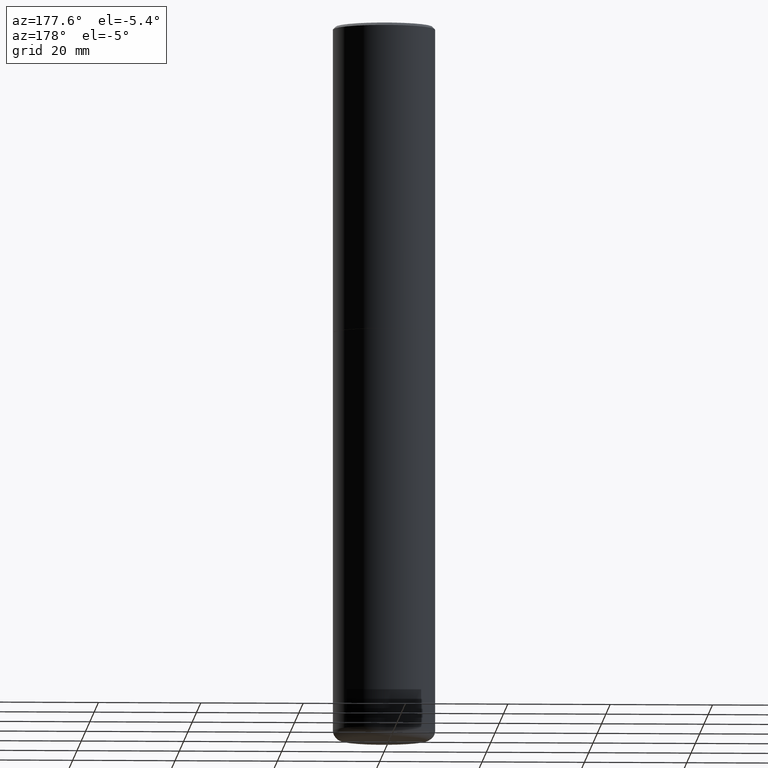
[diagram: clean part render]
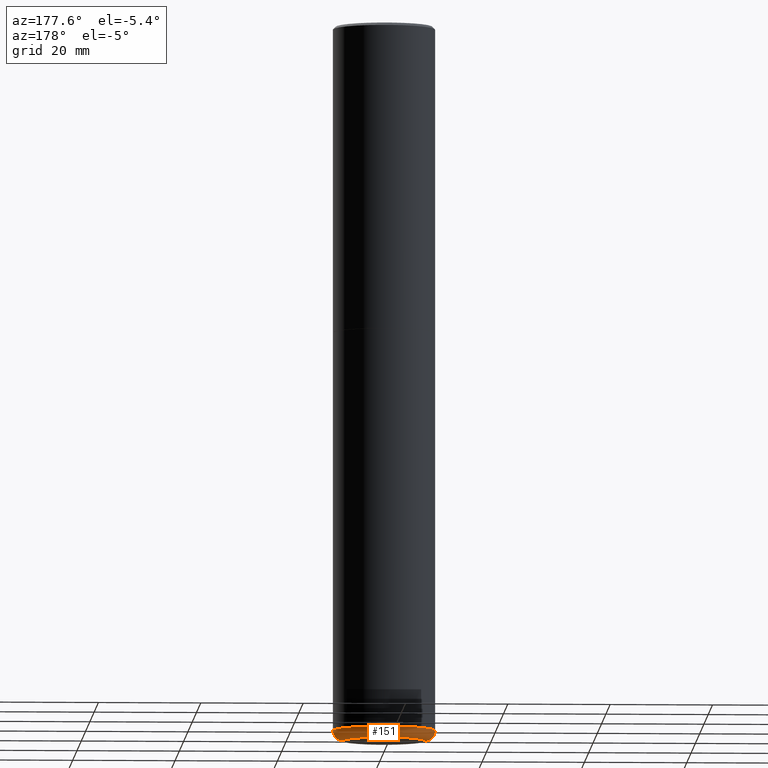
[diagram: same view with one face highlighted and labeled with its STEP entity id]
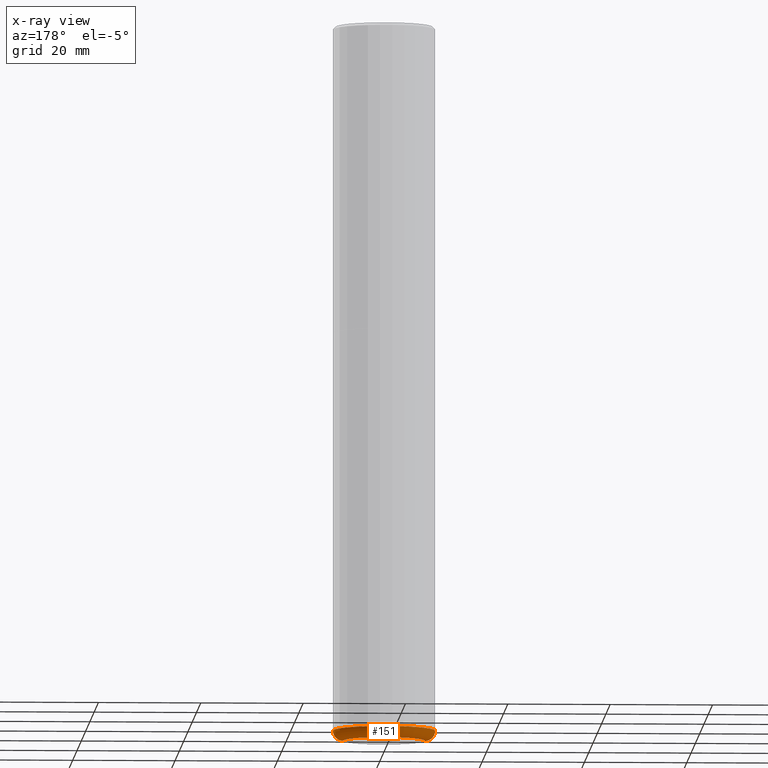
[diagram: x-ray of the same camera — body ghosted, the highlighted face saturated]
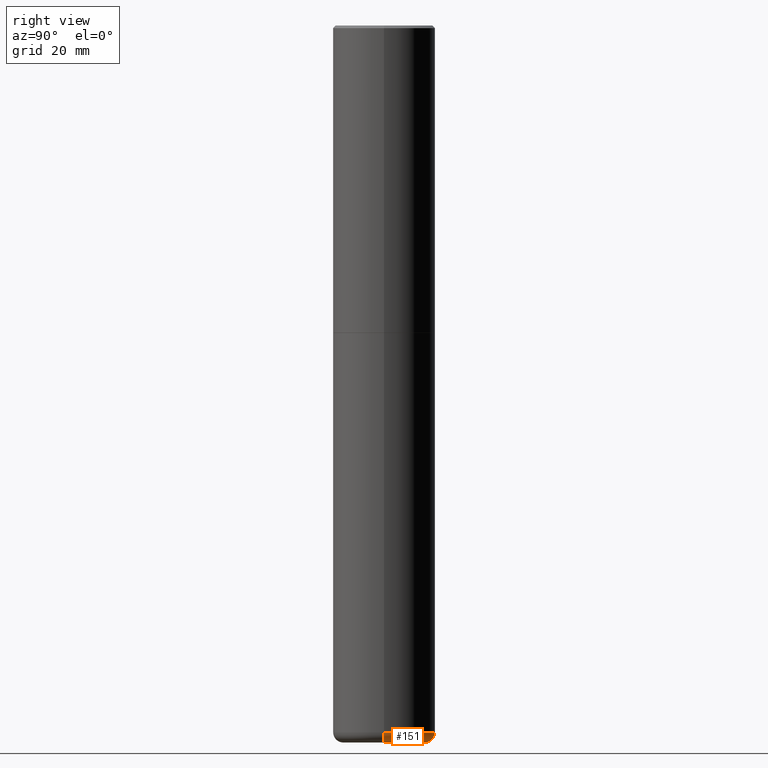
[diagram: same view with one face highlighted and labeled with its STEP entity id]
A machine part, auxiliary view. The second image highlights one B-rep face of the part: STEP entity #151.
The next image is the same camera in x-ray: the body ghosted, the highlighted face saturated — about 0% of this face is hidden behind the body in this view.
A second angle (right view) of the same face is appended — the face is thin or edge-on in the first view.
In plain terms, the highlighted toroidal blend (fillet) surface has major radius 8.001 mm and minor (blend) radius 1.999 mm.
Its self-contained STEP definition (entity closure, byte-faithful):
#45 = AXIS2_PLACEMENT_3D ( 'NONE', #339, #146, #277 ) ;
#51 = CARTESIAN_POINT ( 'NONE',  ( -0.3937000000000002164, -1.617216051138117513E-14, -5.433099999999999596 ) ) ;
#52 = EDGE_CURVE ( 'NONE', #234, #104, #306, .T. ) ;
#71 = AXIS2_PLACEMENT_3D ( 'NONE', #107, #337, #178 ) ;
#73 = ORIENTED_EDGE ( 'NONE', *, *, #184, .T. ) ;
#76 = ORIENTED_EDGE ( 'NONE', *, *, #52, .F. ) ;
#84 = DIRECTION ( 'NONE',  ( -2.445468806185136597E-29, 3.491481338843145583E-15, 1.000000000000000000 ) ) ;
#89 = DIRECTION ( 'NONE',  ( -1.000000000000000000, 7.105427357600995548E-15, 0.000000000000000000 ) ) ;
#104 = VERTEX_POINT ( 'NONE', #144 ) ;
#107 = CARTESIAN_POINT ( 'NONE',  ( 0.3150000000000000577, -2.116920050553986882E-14, -5.433099999999999596 ) ) ;
#110 = DIRECTION ( 'NONE',  ( 1.000000000000000000, -6.982962677686266711E-15, 0.000000000000000000 ) ) ;
#116 = CARTESIAN_POINT ( 'NONE',  ( -0.3150000000000000577, -1.673135764442437708E-14, -5.433099999999999596 ) ) ;
#119 = DIRECTION ( 'NONE',  ( -2.445468806185136597E-29, 3.491481338843145583E-15, 1.000000000000000000 ) ) ;
#136 = CIRCLE ( 'NONE', #179, 0.07870000000000024198 ) ;
#144 = CARTESIAN_POINT ( 'NONE',  ( 0.3937000000000002164, -2.171875966827377866E-14, -5.433099999999999596 ) ) ;
#146 = DIRECTION ( 'NONE',  ( -2.445468806185136597E-29, 3.491481338843145583E-15, 1.000000000000000000 ) ) ;
#151 = ADVANCED_FACE ( 'NONE', ( #274 ), #164, .T. ) ;
#156 = ORIENTED_EDGE ( 'NONE', *, *, #170, .T. ) ;
#162 = VERTEX_POINT ( 'NONE', #340 ) ;
#164 = TOROIDAL_SURFACE ( 'NONE', #45, 0.3150000000000000577, 0.07870000000000024198 ) ;
#170 = EDGE_CURVE ( 'NONE', #234, #162, #404, .T. ) ;
#178 = DIRECTION ( 'NONE',  ( 1.000000000000000000, -6.982962677686273810E-15, 0.000000000000000000 ) ) ;
#179 = AXIS2_PLACEMENT_3D ( 'NONE', #116, #382, #89 ) ;
#184 = EDGE_CURVE ( 'NONE', #162, #325, #136, .T. ) ;
#211 = CIRCLE ( 'NONE', #276, 0.3937000000000001054 ) ;
#234 = VERTEX_POINT ( 'NONE', #280 ) ;
#243 = EDGE_LOOP ( 'NONE', ( #156, #73, #271, #76 ) ) ;
#249 = DIRECTION ( 'NONE',  ( 1.000000000000000000, -6.982962677686273810E-15, 0.000000000000000000 ) ) ;
#271 = ORIENTED_EDGE ( 'NONE', *, *, #348, .F. ) ;
#274 = FACE_OUTER_BOUND ( 'NONE', #243, .T. ) ;
#276 = AXIS2_PLACEMENT_3D ( 'NONE', #413, #119, #110 ) ;
#277 = DIRECTION ( 'NONE',  ( 1.000000000000000000, -6.982962677686263555E-15, 4.883557194083111219E-29 ) ) ;
#279 = CARTESIAN_POINT ( 'NONE',  ( 1.347893496593123646E-28, -1.924434684343564878E-14, -5.511800000000000033 ) ) ;
#280 = CARTESIAN_POINT ( 'NONE',  ( 0.3150000000000000577, -2.144398008690682532E-14, -5.511800000000000033 ) ) ;
#306 = CIRCLE ( 'NONE', #71, 0.07870000000000024198 ) ;
#325 = VERTEX_POINT ( 'NONE', #51 ) ;
#337 = DIRECTION ( 'NONE',  ( -6.982962677686266711E-15, -1.000000000000000000, 3.491481338843145583E-15 ) ) ;
#339 = CARTESIAN_POINT ( 'NONE',  ( 1.328647657088446494E-28, -1.896956726206869229E-14, -5.433099999999999596 ) ) ;
#340 = CARTESIAN_POINT ( 'NONE',  ( -0.3150000000000000577, -1.658914886858625593E-14, -5.511800000000000033 ) ) ;
#348 = EDGE_CURVE ( 'NONE', #104, #325, #211, .T. ) ;
#382 = DIRECTION ( 'NONE',  ( 7.105427357601001859E-15, 1.000000000000000000, -3.491481338843145583E-15 ) ) ;
#398 = AXIS2_PLACEMENT_3D ( 'NONE', #279, #84, #249 ) ;
#404 = CIRCLE ( 'NONE', #398, 0.3150000000000000577 ) ;
#413 = CARTESIAN_POINT ( 'NONE',  ( 1.328647657088446494E-28, -1.896956726206869229E-14, -5.433099999999999596 ) ) ;